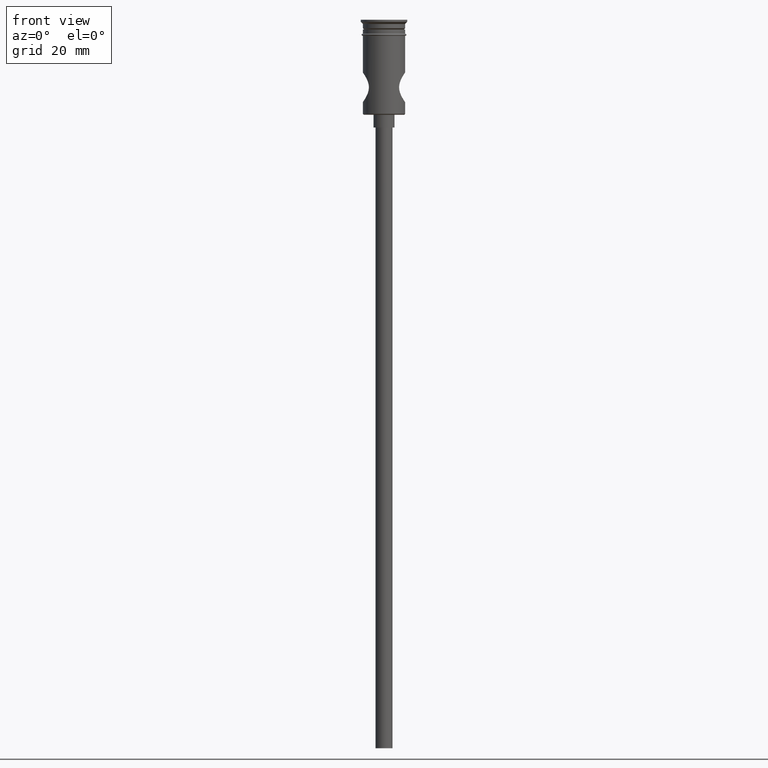
[diagram: clean part render]
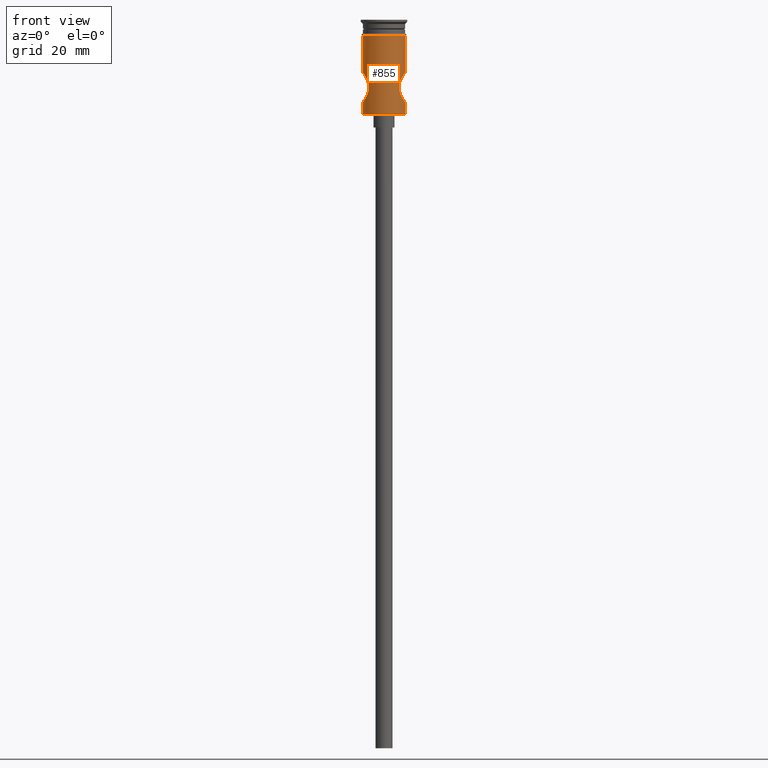
[diagram: same view with one face highlighted and labeled with its STEP entity id]
A machine part, front view. The second image highlights one B-rep face of the part: STEP entity #855.
In plain terms, the highlighted cylindrical surface (edge-blend (fillet) strip) has radius 5 mm, axis along (-0, -0, 1).
Its self-contained STEP definition (entity closure, byte-faithful):
#19 = VERTEX_POINT ( 'NONE', #960 ) ;
#26 = CARTESIAN_POINT ( 'NONE',  ( 4.430092741868957518, -2.325186606330109651, -18.62532192001001974 ) ) ;
#28 = EDGE_CURVE ( 'NONE', #1113, #157, #527, .T. ) ;
#54 = CARTESIAN_POINT ( 'NONE',  ( 4.999999999999997335, 0.000000000000000000, 0.000000000000000000 ) ) ;
#57 = CARTESIAN_POINT ( 'NONE',  ( 4.916439270295949626, -0.9398614332659723791, -12.62027120389697998 ) ) ;
#70 = ORIENTED_EDGE ( 'NONE', *, *, #1348, .T. ) ;
#92 = CARTESIAN_POINT ( 'NONE',  ( 3.895739369778995265, -3.136303962901519249, -14.43013777325952240 ) ) ;
#157 = VERTEX_POINT ( 'NONE', #1290 ) ;
#161 = DIRECTION ( 'NONE',  ( -0.000000000000000000, -0.000000000000000000, 1.000000000000000000 ) ) ;
#168 = CARTESIAN_POINT ( 'NONE',  ( 4.999999999999997335, -2.566613809368467357E-18, -12.50000000000000000 ) ) ;
#181 = CARTESIAN_POINT ( 'NONE',  ( 4.673659481606455834, -1.788174745749496974, -12.98292214720542681 ) ) ;
#191 = CARTESIAN_POINT ( 'NONE',  ( -4.867983987714242566, -1.162668094897675308, -12.69064358740267728 ) ) ;
#202 = CARTESIAN_POINT ( 'NONE',  ( 4.426715284047066490, -2.331577826622753591, -13.38036590003647852 ) ) ;
#213 = CARTESIAN_POINT ( 'NONE',  ( -3.684801900393930740, -3.380303005003528316, -16.93705528951160844 ) ) ;
#238 = EDGE_CURVE ( 'NONE', #1004, #19, #647, .T. ) ;
#253 = CARTESIAN_POINT ( 'NONE',  ( 0.000000000000000000, 0.000000000000000000, 0.000000000000000000 ) ) ;
#267 = CARTESIAN_POINT ( 'NONE',  ( 0.000000000000000000, 0.000000000000000000, -22.29999999999998295 ) ) ;
#277 = B_SPLINE_CURVE_WITH_KNOTS ( 'NONE', 3,
 ( #341, #991, #1345, #669, #873, #336, #778, #558, #786, #882, #1322, #1438, #313, #1217, #213, #1332, #1269, #582, #1360, #483, #803, #592, #1052, #808, #1325, #755, #377, #292, #489, #191, #741, #748, #415, #856 ),
 .UNSPECIFIED., .F., .F.,
 ( 4, 2, 2, 2, 2, 2, 2, 2, 2, 2, 2, 2, 2, 2, 2, 2, 4 ),
 ( 0.000000000000000000, 0.0007105366038334728082, 0.001421073207666945616, 0.002131609811500418533, 0.002842146415333890799, 0.003552683019167363499, 0.004263219623000835332, 0.004973756226834308465, 0.005684292830667780731, 0.006394829434501252997, 0.007105366038334726131, 0.007815902642168198397, 0.008526439246001670663, 0.009236975849835144664, 0.009947512453668618665, 0.01065804905750209093, 0.01136858566133556320 ),
 .UNSPECIFIED. ) ;
#285 = CARTESIAN_POINT ( 'NONE',  ( 4.746196912351519970, -1.588334970602913954, -12.87254662671362304 ) ) ;
#292 = CARTESIAN_POINT ( 'NONE',  ( -4.673268569421630936, -1.789070029896046243, -12.98354582332885165 ) ) ;
#295 = CARTESIAN_POINT ( 'NONE',  ( 3.570438540339076816, -3.500281244049249896, -15.76317787171778484 ) ) ;
#313 = CARTESIAN_POINT ( 'NONE',  ( -3.898231521578598979, -3.133229919584781253, -17.57604949843092967 ) ) ;
#336 = CARTESIAN_POINT ( 'NONE',  ( -4.746911793493237219, -1.585927392041884820, -19.12852474954947368 ) ) ;
#341 = CARTESIAN_POINT ( 'NONE',  ( -4.999999999999997335, 0.000000000000000000, -19.50000000000000000 ) ) ;
#346 = VERTEX_POINT ( 'NONE', #391 ) ;
#356 = CARTESIAN_POINT ( 'NONE',  ( 4.999999999999997335, 0.000000000000000000, 0.000000000000000000 ) ) ;
#362 = CARTESIAN_POINT ( 'NONE',  ( 4.517756352871694858, -2.151795251714681001, -18.76940848963280217 ) ) ;
#377 = CARTESIAN_POINT ( 'NONE',  ( -4.514987869455996616, -2.157566970566973108, -13.23509997660900517 ) ) ;
#391 = CARTESIAN_POINT ( 'NONE',  ( 4.999999999999999112, 0.000000000000000000, -3.799999999999998934 ) ) ;
#392 = CARTESIAN_POINT ( 'NONE',  ( 4.917189828219349579, -0.9354241757019895465, -19.38081624967927041 ) ) ;
#403 = CARTESIAN_POINT ( 'NONE',  ( 4.982711918612967139, -0.4767562777365489390, -12.52457057321148604 ) ) ;
#415 = CARTESIAN_POINT ( 'NONE',  ( -4.999999999999999112, -0.2371603752032608592, -12.49999999999999822 ) ) ;
#416 = CARTESIAN_POINT ( 'NONE',  ( 4.999999999999997335, 0.000000000000000000, -19.50000000000000000 ) ) ;
#420 = CARTESIAN_POINT ( 'NONE',  ( 3.685548694541103565, -3.379498371712150284, -16.94023240168401045 ) ) ;
#423 = VECTOR ( 'NONE', #950, 1000.000000000000000 ) ;
#424 = VECTOR ( 'NONE', #564, 1000.000000000000000 ) ;
#437 = EDGE_CURVE ( 'NONE', #922, #157, #1138, .T. ) ;
#451 = CARTESIAN_POINT ( 'NONE',  ( -4.999999999999997335, 0.000000000000000000, -19.50000000000000000 ) ) ;
#466 = ORIENTED_EDGE ( 'NONE', *, *, #718, .F. ) ;
#472 = CARTESIAN_POINT ( 'NONE',  ( 4.161034651282145447, -2.776525939387527675, -18.14249632040765547 ) ) ;
#483 = CARTESIAN_POINT ( 'NONE',  ( -3.684419786477897585, -3.380727498486507443, -15.06382182351514487 ) ) ;
#489 = CARTESIAN_POINT ( 'NONE',  ( -4.746099814749834778, -1.588584826808698613, -12.87269521592071442 ) ) ;
#499 = CYLINDRICAL_SURFACE ( 'NONE', #833, 4.999999999999997335 ) ;
#527 = B_SPLINE_CURVE_WITH_KNOTS ( 'NONE', 3,
 ( #168, #1424, #403, #57, #840, #285, #181, #978, #202, #735, #655, #619, #92, #1189, #847, #1298, #295, #744, #1433, #420, #859, #1099, #545, #472, #1373, #26, #362, #806, #825, #955, #392, #725, #965, #416 ),
 .UNSPECIFIED., .F., .F.,
 ( 4, 2, 2, 2, 2, 2, 2, 2, 2, 2, 2, 2, 2, 2, 2, 2, 4 ),
 ( 0.01136858566133556320, 0.01207818438826614021, 0.01278778311519671897, 0.01349738184212729772, 0.01420698056905787474, 0.01491657929598845175, 0.01562617802291902877, 0.01633577674984960579, 0.01704537547678018627, 0.01775497420371076329, 0.01846457293064134031, 0.01917417165757191733, 0.01988377038450249434, 0.02059336911143307483, 0.02130296783836365185, 0.02201256656529422887, 0.02272216529222480588 ),
 .UNSPECIFIED. ) ;
#532 = CARTESIAN_POINT ( 'NONE',  ( 4.999999999999997335, -2.566613809368467357E-18, -12.50000000000000000 ) ) ;
#535 = CARTESIAN_POINT ( 'NONE',  ( -4.999999999999997335, 6.123233995736763324E-16, 0.000000000000000000 ) ) ;
#545 = CARTESIAN_POINT ( 'NONE',  ( 3.983893823206855700, -3.025210020259219590, -17.77411699399317513 ) ) ;
#547 = CARTESIAN_POINT ( 'NONE',  ( 4.999999999999997335, 0.000000000000000000, -22.29999999999998295 ) ) ;
#558 = CARTESIAN_POINT ( 'NONE',  ( -4.514512332921254867, -2.158796872327483296, -18.76416415521027048 ) ) ;
#564 = DIRECTION ( 'NONE',  ( -0.000000000000000000, -0.000000000000000000, 1.000000000000000000 ) ) ;
#582 = CARTESIAN_POINT ( 'NONE',  ( -3.570659081539441004, -3.500056246640168567, -15.76290149602504975 ) ) ;
#592 = CARTESIAN_POINT ( 'NONE',  ( -3.897704841096373496, -3.133912156553521289, -14.42504095752970272 ) ) ;
#598 = ORIENTED_EDGE ( 'NONE', *, *, #728, .F. ) ;
#601 = CARTESIAN_POINT ( 'NONE',  ( -4.999999999999997335, 6.123233995736763324E-16, 0.000000000000000000 ) ) ;
#614 = DIRECTION ( 'NONE',  ( -0.000000000000000000, -0.000000000000000000, 1.000000000000000000 ) ) ;
#619 = CARTESIAN_POINT ( 'NONE',  ( 3.981112443873080053, -3.028837293434794908, -14.23213026449943364 ) ) ;
#647 = LINE ( 'NONE', #535, #701 ) ;
#655 = CARTESIAN_POINT ( 'NONE',  ( 4.157772080973118456, -2.781374294039361761, -13.86384087946209398 ) ) ;
#663 = ORIENTED_EDGE ( 'NONE', *, *, #1178, .F. ) ;
#669 = CARTESIAN_POINT ( 'NONE',  ( -4.917023530514224916, -0.9364669193951435933, -19.38057557686099130 ) ) ;
#695 = CARTESIAN_POINT ( 'NONE',  ( -4.999999999999997335, 6.148900133235956503E-16, -12.50000000000000000 ) ) ;
#701 = VECTOR ( 'NONE', #976, 1000.000000000000000 ) ;
#713 = EDGE_CURVE ( 'NONE', #1171, #922, #1279, .T. ) ;
#718 = EDGE_CURVE ( 'NONE', #19, #346, #889, .T. ) ;
#725 = CARTESIAN_POINT ( 'NONE',  ( 4.982662755632213170, -0.4762835908019174003, -19.47535477954639305 ) ) ;
#728 = EDGE_CURVE ( 'NONE', #1171, #1431, #933, .T. ) ;
#735 = CARTESIAN_POINT ( 'NONE',  ( 4.248589671941461532, -2.642262130653794561, -13.69409696383316444 ) ) ;
#741 = CARTESIAN_POINT ( 'NONE',  ( -4.916256218981320814, -0.9408299291222754768, -12.62053693904961271 ) ) ;
#742 = DIRECTION ( 'NONE',  ( -0.000000000000000000, -0.000000000000000000, 1.000000000000000000 ) ) ;
#744 = CARTESIAN_POINT ( 'NONE',  ( 3.570994643509252331, -3.499713904565604050, -16.24506344908463973 ) ) ;
#748 = CARTESIAN_POINT ( 'NONE',  ( -4.982628869212511802, -0.4776460173546703825, -12.52468910484750886 ) ) ;
#755 = CARTESIAN_POINT ( 'NONE',  ( -4.428881612395301204, -2.327583483424053856, -13.37666337410697004 ) ) ;
#759 = CARTESIAN_POINT ( 'NONE',  ( -4.999999999999997335, 6.123233995736763324E-16, -22.29999999999998295 ) ) ;
#765 = AXIS2_PLACEMENT_3D ( 'NONE', #1387, #614, #940 ) ;
#778 = CARTESIAN_POINT ( 'NONE',  ( -4.674688623500593998, -1.785640449077907865, -19.01869104075543504 ) ) ;
#781 = FACE_OUTER_BOUND ( 'NONE', #1349, .T. ) ;
#786 = CARTESIAN_POINT ( 'NONE',  ( -4.428186069255828805, -2.328788839128362653, -18.62210750386486779 ) ) ;
#803 = CARTESIAN_POINT ( 'NONE',  ( -3.747877086464327157, -3.311634910139662047, -14.84458855276694678 ) ) ;
#806 = CARTESIAN_POINT ( 'NONE',  ( 4.675804657553948473, -1.782469094714183910, -19.02037251247935146 ) ) ;
#808 = CARTESIAN_POINT ( 'NONE',  ( -4.158235378742428878, -2.780628636560694478, -13.86303714491904415 ) ) ;
#814 = DIRECTION ( 'NONE',  ( -0.000000000000000000, -0.000000000000000000, 1.000000000000000000 ) ) ;
#825 = CARTESIAN_POINT ( 'NONE',  ( 4.747110842247819207, -1.585336329575865566, -19.12882620454187688 ) ) ;
#833 = AXIS2_PLACEMENT_3D ( 'NONE', #253, #742, #1315 ) ;
#840 = CARTESIAN_POINT ( 'NONE',  ( 4.868192471333491866, -1.161849892071759704, -12.69033575581851991 ) ) ;
#844 = LINE ( 'NONE', #54, #1265 ) ;
#847 = CARTESIAN_POINT ( 'NONE',  ( 3.683539878596076012, -3.381675694554021394, -15.06753625433506016 ) ) ;
#855 = ADVANCED_FACE ( 'NONE', ( #781 ), #499, .T. ) ;
#856 = CARTESIAN_POINT ( 'NONE',  ( -4.999999999999997335, 6.148900133235956503E-16, -12.50000000000000000 ) ) ;
#859 = CARTESIAN_POINT ( 'NONE',  ( 3.750129256699476610, -3.309052136048265425, -17.16230965741016945 ) ) ;
#861 = ORIENTED_EDGE ( 'NONE', *, *, #713, .T. ) ;
#873 = CARTESIAN_POINT ( 'NONE',  ( -4.867792988234955764, -1.163154629326878631, -19.30906393254161557 ) ) ;
#882 = CARTESIAN_POINT ( 'NONE',  ( -4.250179789261264496, -2.639708521817378362, -18.30881877567685834 ) ) ;
#889 = CIRCLE ( 'NONE', #765, 4.999999999999999112 ) ;
#922 = VERTEX_POINT ( 'NONE', #547 ) ;
#933 = LINE ( 'NONE', #601, #423 ) ;
#940 = DIRECTION ( 'NONE',  ( 1.000000000000000000, 0.000000000000000000, 0.000000000000000000 ) ) ;
#950 = DIRECTION ( 'NONE',  ( -0.000000000000000000, -0.000000000000000000, 1.000000000000000000 ) ) ;
#955 = CARTESIAN_POINT ( 'NONE',  ( 4.867955598446419785, -1.162480502208107280, -19.30930261204487763 ) ) ;
#960 = CARTESIAN_POINT ( 'NONE',  ( -5.000000000000000000, 6.123233995736766282E-16, -3.799999999999998934 ) ) ;
#965 = CARTESIAN_POINT ( 'NONE',  ( 4.999999999999997335, -0.2403984540558916083, -19.49999999999999645 ) ) ;
#976 = DIRECTION ( 'NONE',  ( -0.000000000000000000, -0.000000000000000000, 1.000000000000000000 ) ) ;
#978 = CARTESIAN_POINT ( 'NONE',  ( 4.514482534237688860, -2.158728634962964854, -13.23590550600187932 ) ) ;
#991 = CARTESIAN_POINT ( 'NONE',  ( -4.999999999999997335, -0.2407161887825677027, -19.50000000000000355 ) ) ;
#1004 = VERTEX_POINT ( 'NONE', #695 ) ;
#1030 = ORIENTED_EDGE ( 'NONE', *, *, #437, .T. ) ;
#1052 = CARTESIAN_POINT ( 'NONE',  ( -3.982796017137843592, -3.026574460567178715, -14.22846030439630560 ) ) ;
#1078 = AXIS2_PLACEMENT_3D ( 'NONE', #267, #814, #1381 ) ;
#1099 = CARTESIAN_POINT ( 'NONE',  ( 3.898682939928062474, -3.132661299111801245, -17.57709320074676995 ) ) ;
#1113 = VERTEX_POINT ( 'NONE', #532 ) ;
#1138 = LINE ( 'NONE', #356, #424 ) ;
#1166 = ORIENTED_EDGE ( 'NONE', *, *, #28, .F. ) ;
#1171 = VERTEX_POINT ( 'NONE', #759 ) ;
#1178 = EDGE_CURVE ( 'NONE', #1431, #1004, #277, .T. ) ;
#1189 = CARTESIAN_POINT ( 'NONE',  ( 3.747640547736768912, -3.311854180050358476, -14.84566389264594655 ) ) ;
#1217 = CARTESIAN_POINT ( 'NONE',  ( -3.749404186130726568, -3.309880205360250738, -17.16006671215495061 ) ) ;
#1228 = ORIENTED_EDGE ( 'NONE', *, *, #238, .F. ) ;
#1265 = VECTOR ( 'NONE', #161, 1000.000000000000000 ) ;
#1269 = CARTESIAN_POINT ( 'NONE',  ( -3.570769539400989512, -3.499943557075027467, -16.23875620938738251 ) ) ;
#1279 = CIRCLE ( 'NONE', #1078, 4.999999999999997335 ) ;
#1290 = CARTESIAN_POINT ( 'NONE',  ( 4.999999999999997335, 0.000000000000000000, -19.50000000000000000 ) ) ;
#1298 = CARTESIAN_POINT ( 'NONE',  ( 3.594691202437674704, -3.475973489464814659, -15.52795398460032317 ) ) ;
#1315 = DIRECTION ( 'NONE',  ( 1.000000000000000000, 0.000000000000000000, 0.000000000000000000 ) ) ;
#1322 = CARTESIAN_POINT ( 'NONE',  ( -4.157812118375018073, -2.781267535482760067, -18.13615750793723791 ) ) ;
#1325 = CARTESIAN_POINT ( 'NONE',  ( -4.249353914272581356, -2.641141518392748910, -13.69263973231696774 ) ) ;
#1332 = CARTESIAN_POINT ( 'NONE',  ( -3.595807167575519880, -3.474821472305468006, -16.47972571000775233 ) ) ;
#1345 = CARTESIAN_POINT ( 'NONE',  ( -4.982723327959925008, -0.4759820666327093663, -19.47544279110368137 ) ) ;
#1348 = EDGE_CURVE ( 'NONE', #1113, #346, #844, .T. ) ;
#1349 = EDGE_LOOP ( 'NONE', ( #598, #861, #1030, #1166, #70, #466, #1228, #663 ) ) ;
#1360 = CARTESIAN_POINT ( 'NONE',  ( -3.594836440833074409, -3.475833503732776997, -15.52636569858374216 ) ) ;
#1373 = CARTESIAN_POINT ( 'NONE',  ( 4.251971835984950765, -2.636844698082868810, -18.31211115133643119 ) ) ;
#1381 = DIRECTION ( 'NONE',  ( -1.000000000000000000, 0.000000000000000000, 0.000000000000000000 ) ) ;
#1387 = CARTESIAN_POINT ( 'NONE',  ( 0.000000000000000000, 0.000000000000000000, -3.799999999999998934 ) ) ;
#1424 = CARTESIAN_POINT ( 'NONE',  ( 4.999999999999997335, -0.2368473339933011013, -12.50000000000000178 ) ) ;
#1431 = VERTEX_POINT ( 'NONE', #451 ) ;
#1433 = CARTESIAN_POINT ( 'NONE',  ( 3.595881830421372882, -3.474753557575580576, -16.48076390016037251 ) ) ;
#1438 = CARTESIAN_POINT ( 'NONE',  ( -3.982200312216191307, -3.027363768862568083, -17.77022219329247577 ) ) ;